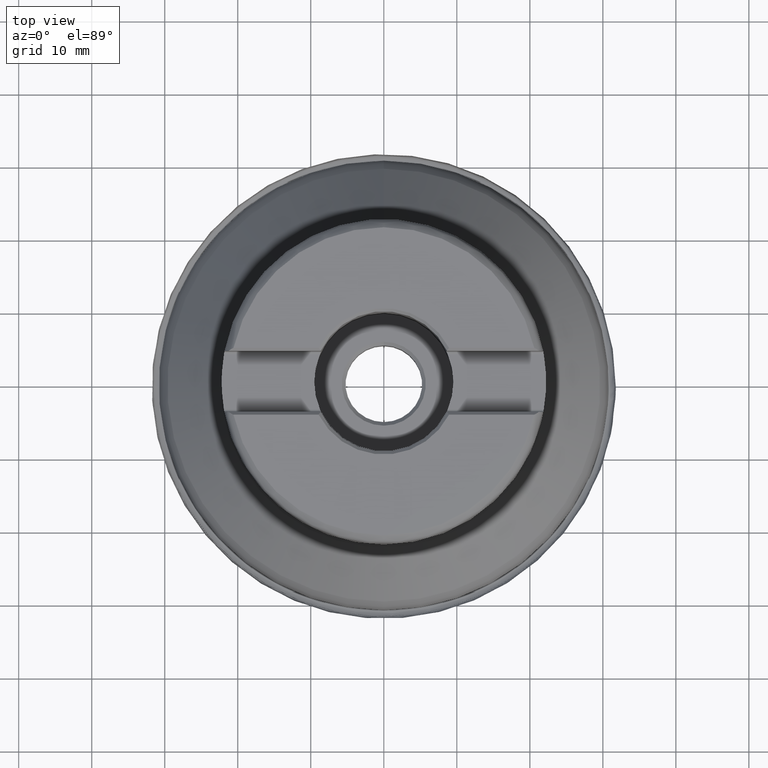
[diagram: clean part render]
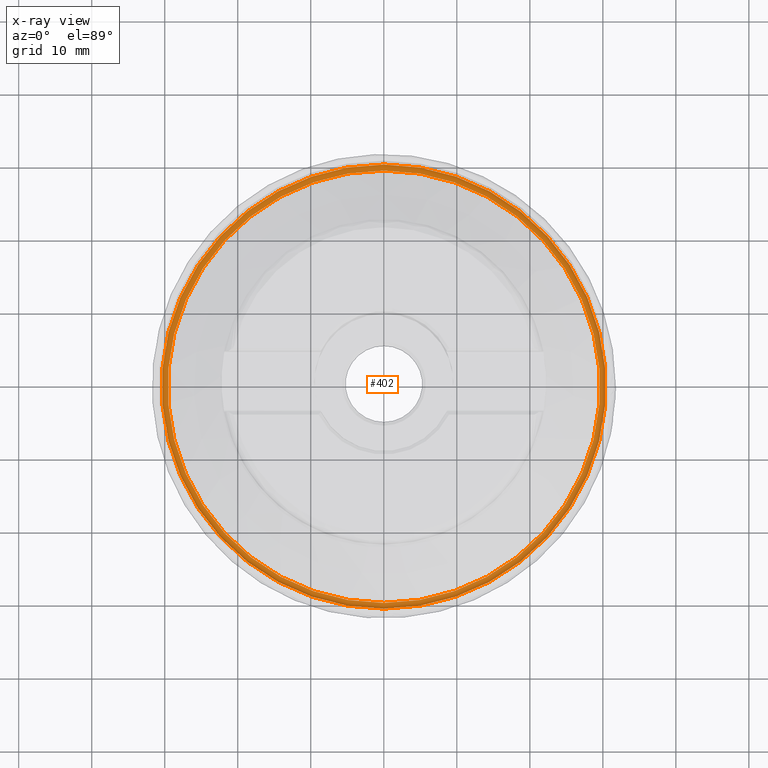
[diagram: x-ray — body ghosted, one internal face saturated and labeled with its STEP entity id]
A machine part, top view, then the same camera in x-ray: the body is ghosted and one INTERNAL B-rep face — a face not visible from any outside direction — is saturated and labeled: STEP entity #402.
In plain terms, the highlighted toroidal blend (fillet) surface has major radius 29.6123 mm and minor (blend) radius 0.8 mm.
Its self-contained STEP definition (entity closure, byte-faithful):
#210=FACE_BOUND('',#536,.T.);
#211=FACE_BOUND('',#537,.T.);
#402=ADVANCED_FACE('',(#210,#211),#443,.T.);
#443=TOROIDAL_SURFACE('',#1282,29.6123188989626,0.8);
#536=EDGE_LOOP('',(#835));
#537=EDGE_LOOP('',(#836));
#620=CIRCLE('',#1226,30.4116166284653);
#622=CIRCLE('',#1229,29.6123188989626);
#835=ORIENTED_EDGE('',*,*,#1054,.F.);
#836=ORIENTED_EDGE('',*,*,#1056,.F.);
#947=VERTEX_POINT('',#2080);
#949=VERTEX_POINT('',#2085);
#1054=EDGE_CURVE('',#947,#947,#620,.T.);
#1056=EDGE_CURVE('',#949,#949,#622,.T.);
#1226=AXIS2_PLACEMENT_3D('',#2079,#1394,#1395);
#1229=AXIS2_PLACEMENT_3D('',#2084,#1400,#1401);
#1282=AXIS2_PLACEMENT_3D('',#2279,#1518,#1519);
#1394=DIRECTION('',(0.,1.17145536458252E-15,1.));
#1395=DIRECTION('',(0.,1.,-1.16935024178355E-15));
#1400=DIRECTION('',(0.,-1.17145536458252E-15,-1.));
#1401=DIRECTION('',(0.,-1.,1.17162285189194E-15));
#1518=DIRECTION('',(0.,1.17145536458252E-15,1.));
#1519=DIRECTION('',(0.,-1.,1.1693232395619E-15));
#2079=CARTESIAN_POINT('',(0.,1.71792374090477E-15,1.46648672484162));
#2080=CARTESIAN_POINT('',(0.,30.4116166284653,1.46648672484158));
#2084=CARTESIAN_POINT('',(0.,8.20018755207771E-16,0.700000000000004));
#2085=CARTESIAN_POINT('',(0.,-29.6123188989626,0.700000000000038));
#2279=CARTESIAN_POINT('',(0.,1.75718304687379E-15,1.5));